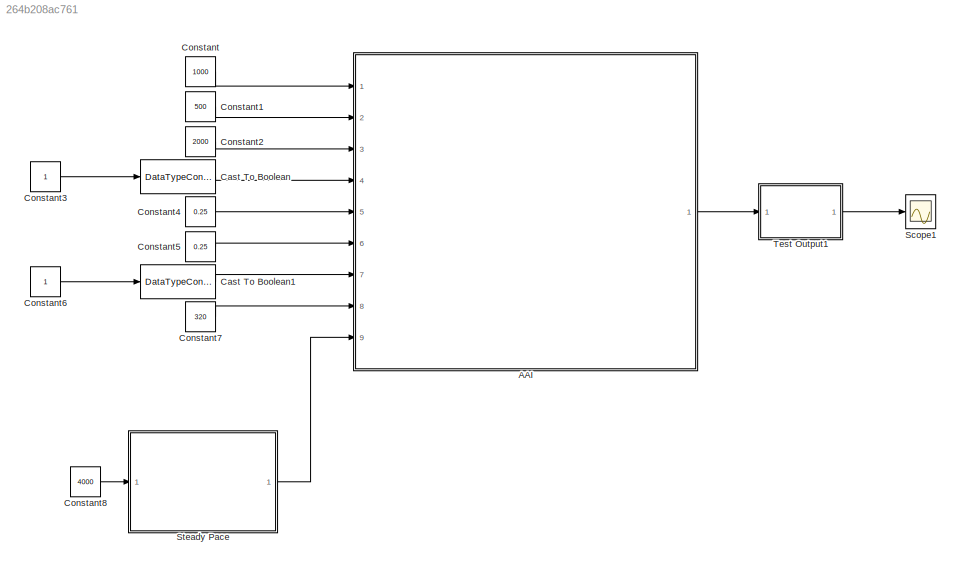
MODEL slx_264b208ac761
KIND model
CONFIG AbsTol = auto
CONFIG EnableMultiTasking = on
CONFIG FixedStep = 1e-3
CONFIG MaxStep = auto
CONFIG MinStep = auto
CONFIG RelTol = 1e-3
CONFIG SampleTimeConstraint = Unconstrained
CONFIG Solver = FixedStepAuto
CONFIG SolverName = FixedStepAuto
CONFIG StartTime = 0.0
CONFIG StopTime = 10.0
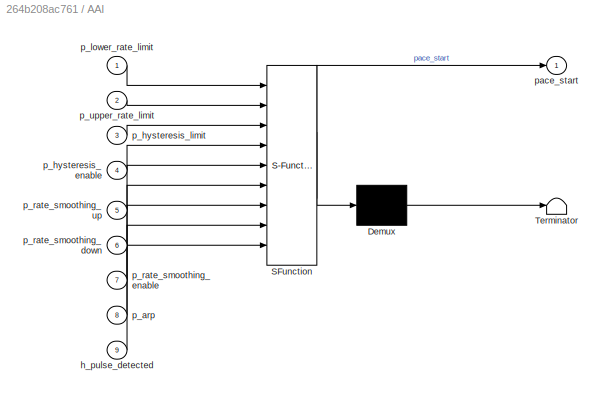
BLOCK [SubSystem] AAI
  ErrorFcn = Stateflow.Translate.translate
  PermitHierarchicalResolution = ExplicitOnly
  Ports = [9, 1]
  RequestExecContextInheritance = off
  SFBlockType = Chart
  TreatAsAtomicUnit = on
BLOCK [Demux] AAI/ Demux 
  Outputs = 1
  Ports = [1, 1]
BLOCK [S-Function] AAI/ SFunction 
  EnableBusSupport = on
  FunctionName = sf_sfun
  PortCounts = [9 2]
  Ports = [9, 2]
  SFcnIsStateOwnerBlock = off
  SFunctionDeploymentMode = off
  Tag = Stateflow S-Function 3
BLOCK [Terminator] AAI/ Terminator 
BLOCK [Inport] AAI/h_pulse_detected
  Port = 9
BLOCK [Inport] AAI/p_arp
  Port = 8
BLOCK [Inport] AAI/p_hysteresis_enable
  Port = 4
BLOCK [Inport] AAI/p_hysteresis_limit
  Port = 3
BLOCK [Inport] AAI/p_lower_rate_limit
BLOCK [Inport] AAI/p_rate_smoothing_down
  Port = 6
BLOCK [Inport] AAI/p_rate_smoothing_enable
  Port = 7
BLOCK [Inport] AAI/p_rate_smoothing_up
  Port = 5
BLOCK [Inport] AAI/p_upper_rate_limit
  Port = 2
BLOCK [Outport] AAI/pace_start
BLOCK [DataTypeConversion] Cast To Boolean
  OutDataTypeStr = boolean
  RndMeth = Floor
  SaturateOnIntegerOverflow = off
BLOCK [DataTypeConversion] Cast To Boolean1
  OutDataTypeStr = boolean
  RndMeth = Floor
  SaturateOnIntegerOverflow = off
BLOCK [Constant] Constant
  Value = 1000
BLOCK [Constant] Constant1
  Value = 500
BLOCK [Constant] Constant2
  Value = 2000
BLOCK [Constant] Constant3
BLOCK [Constant] Constant4
  Value = 0.25
BLOCK [Constant] Constant5
  Value = 0.25
BLOCK [Constant] Constant6
BLOCK [Constant] Constant7
  Value = 320
BLOCK [Constant] Constant8
  Value = 4000
BLOCK [Scope] Scope1
  Floating = off
  NumInputPorts = 1
  Ports = [1]
  ScopeSpecificationString = Simulink.scopes.TimeScopeBlockCfg('CurrentConfiguration', extmgr.ConfigurationSet(extmgr.Configuration('Core','General UI',true),extmgr.Configuration('Core','Source UI',true),extmgr.Configuration('Sources','WiredSimulink',true,'DataLoggingVariableName','ScopeData1'),extmgr.Configuration('Visuals','Time Domain',true,'SerializedDisplays',{struct('MinYLimReal','-0.00519','MaxYLimReal','0.82815','YLab...<+1419ch>
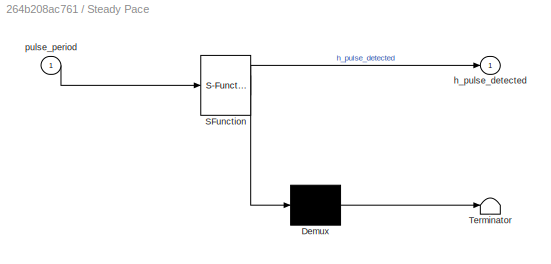
BLOCK [SubSystem] Steady Pace
  ErrorFcn = Stateflow.Translate.translate
  PermitHierarchicalResolution = ExplicitOnly
  Ports = [1, 1]
  RequestExecContextInheritance = off
  SFBlockType = Chart
  TreatAsAtomicUnit = on
BLOCK [Demux] Steady Pace/ Demux 
  Outputs = 1
  Ports = [1, 1]
BLOCK [S-Function] Steady Pace/ SFunction 
  EnableBusSupport = on
  FunctionName = sf_sfun
  PortCounts = [1 2]
  Ports = [1, 2]
  SFcnIsStateOwnerBlock = off
  SFunctionDeploymentMode = off
  Tag = Stateflow S-Function 2
BLOCK [Terminator] Steady Pace/ Terminator 
BLOCK [Outport] Steady Pace/h_pulse_detected
BLOCK [Inport] Steady Pace/pulse_period
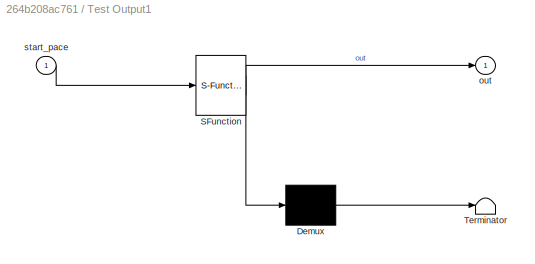
BLOCK [SubSystem] Test Output1
  ErrorFcn = Stateflow.Translate.translate
  PermitHierarchicalResolution = ExplicitOnly
  Ports = [1, 1]
  RequestExecContextInheritance = off
  SFBlockType = Chart
  TreatAsAtomicUnit = on
BLOCK [Demux] Test Output1/ Demux 
  Outputs = 1
  Ports = [1, 1]
BLOCK [S-Function] Test Output1/ SFunction 
  EnableBusSupport = on
  FunctionName = sf_sfun
  PortCounts = [1 2]
  Ports = [1, 2]
  SFcnIsStateOwnerBlock = off
  SFunctionDeploymentMode = off
  Tag = Stateflow S-Function 4
BLOCK [Terminator] Test Output1/ Terminator 
BLOCK [Outport] Test Output1/out
BLOCK [Inport] Test Output1/start_pace
LINE AAI:1 -> Test Output1:1
LINE Cast To Boolean1:1 -> AAI:7
LINE Cast To Boolean:1 -> AAI:4
LINE Constant1:1 -> AAI:2
LINE Constant2:1 -> AAI:3
LINE Constant3:1 -> Cast To Boolean:1
LINE Constant4:1 -> AAI:5
LINE Constant5:1 -> AAI:6
LINE Constant6:1 -> Cast To Boolean1:1
LINE Constant7:1 -> AAI:8
LINE Constant8:1 -> Steady Pace:1
LINE Constant:1 -> AAI:1
LINE Steady Pace:1 -> AAI:9
LINE Test Output1:1 -> Scope1:1
CHART Steady Pace states=2 transitions=3
  STATE_LABEL 'IDLE\nentry:\nh_pulse_detected=false;'
  STATE_LABEL 'ON\nentry:\nh_pulse_detected=true;'
CHART AAI states=8 transitions=61
  STATE_LABEL 'UPPER_RATE_LIMIT\nentry:\ni_limit = p_upper_rate_limit;\ni_limit = i_limit - p_arp;\nexit: i_last_period = p_arp + elapsed(msec);'
  STATE_LABEL 'SENSED'
  STATE_LABEL 'LOWER_RATE_LIMIT\nentry:\ni_limit = p_lower_rate_limit;\ni_limit = i_limit - p_arp;\nexit: i_last_period = p_arp + elapsed(msec);'
  STATE_LABEL 'INITIAL\nentry:\ni_limit = i_last_period;'
  STATE_LABEL 'HYSTERESIS_LIMIT\nentry:\ni_limit = p_hysteresis_limit;\ni_limit = i_limit - p_arp;\nexit: i_last_period = p_arp + elapsed(msec);'
  STATE_LABEL 'RATE_SMOOTHING_DOWN\nentry:\ni_limit = i_last_period/(1-p_rate_smoothing_down);\ni_limit = i_limit - p_arp;\nexit: i_last_period = p_arp + elapsed(msec);'
  STATE_LABEL 'PACED\nentry:\npace_start = 1;\non after(1,msec):\npace_start = 0;'
  STATE_LABEL 'RATE_SMOOTHING_UP\nentry:\ni_limit =  i_last_period/(1+p_rate_smoothing_up);\ni_limit = i_limit - p_arp;\nexit: i_last_period = p_arp + elapsed(msec);'
CHART Test Output1 states=3 transitions=4
  STATE_LABEL 'IDLE\nentry:\nout = 0;'
  STATE_LABEL 'ON\nentry:\nout = 1;'
  STATE_LABEL 'WAIT_FOR_FALLING_EDGE\nentry:\nout = 0;'
CHART  states=0 transitions=0
CHART  states=0 transitions=0
CHART  states=0 transitions=0
